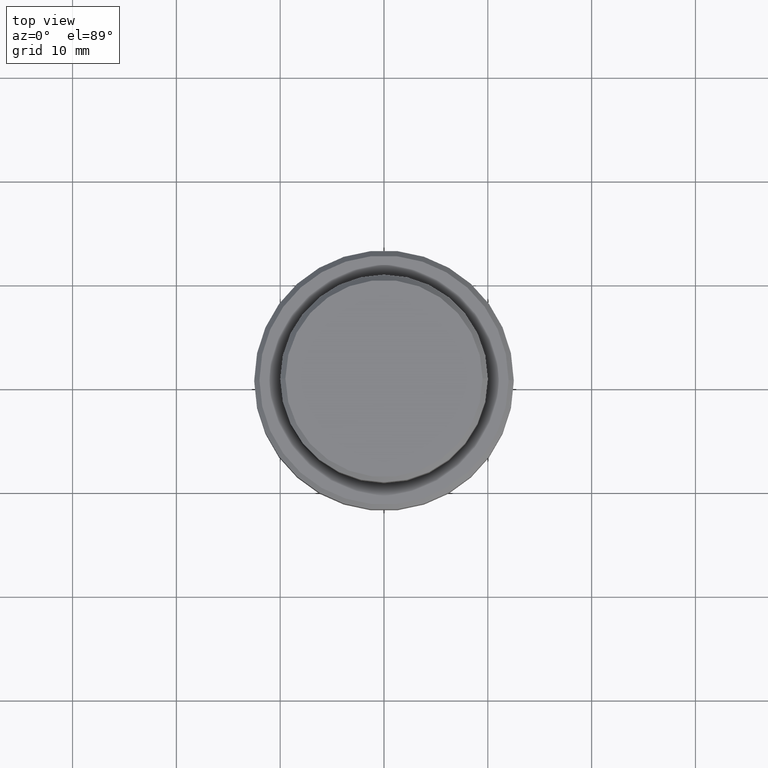
[diagram: clean part render]
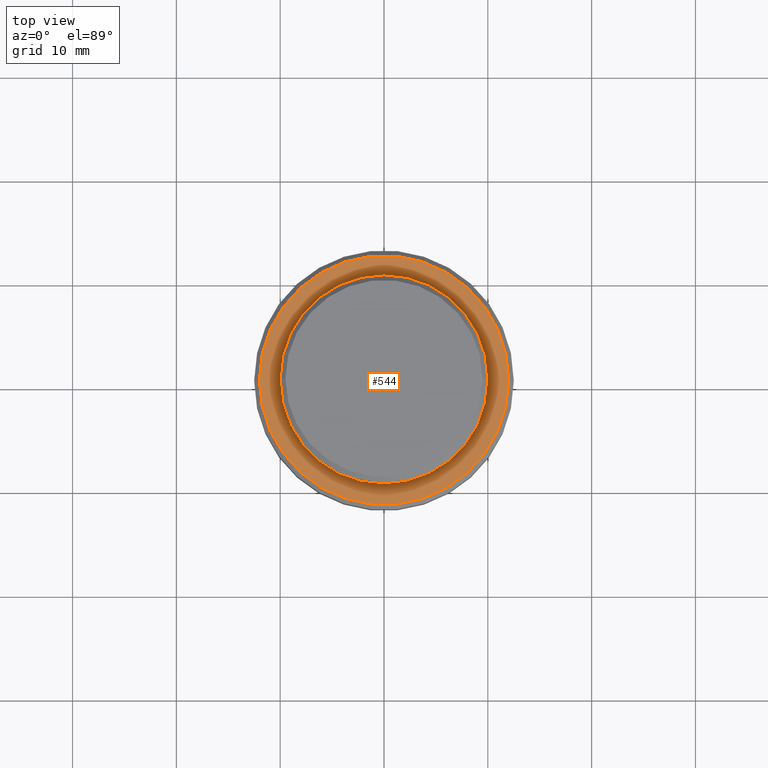
[diagram: same view with one face highlighted and labeled with its STEP entity id]
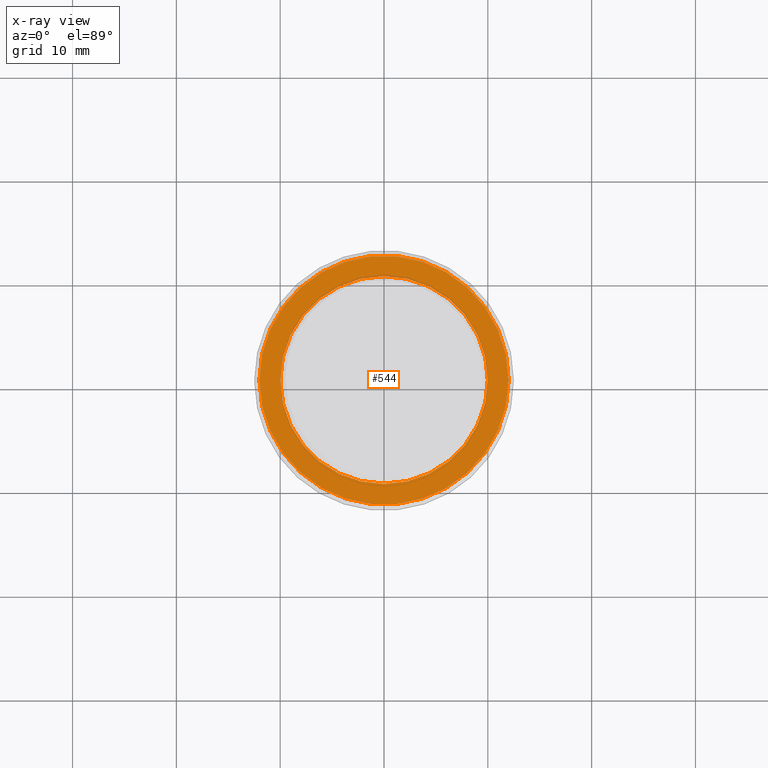
[diagram: x-ray of the same camera — body ghosted, the highlighted face saturated]
A machine part, top view. The second image highlights one B-rep face of the part: STEP entity #544.
The next image is the same camera in x-ray: the body ghosted, the highlighted face saturated — about 1% of this face is hidden behind the body in this view.
In plain terms, the highlighted planar face has unit normal (0, -0, 1).
Its self-contained STEP definition (entity closure, byte-faithful):
#2 = AXIS2_PLACEMENT_3D ( 'NONE', #939, #66, #828 ) ;
#20 = DIRECTION ( 'NONE',  ( -0.000000000000000000, -0.000000000000000000, 1.000000000000000000 ) ) ;
#66 = DIRECTION ( 'NONE',  ( -0.000000000000000000, -0.000000000000000000, 1.000000000000000000 ) ) ;
#197 = ORIENTED_EDGE ( 'NONE', *, *, #1183, .T. ) ;
#212 = VERTEX_POINT ( 'NONE', #1131 ) ;
#247 = CARTESIAN_POINT ( 'NONE',  ( 0.000000000000000000, 0.000000000000000000, -9.000000000000001776 ) ) ;
#259 = AXIS2_PLACEMENT_3D ( 'NONE', #550, #983, #1174 ) ;
#260 = CIRCLE ( 'NONE', #2, 11.99999999999999645 ) ;
#266 = EDGE_CURVE ( 'NONE', #776, #443, #617, .T. ) ;
#282 = CIRCLE ( 'NONE', #561, 9.999999999999994671 ) ;
#370 = DIRECTION ( 'NONE',  ( 1.000000000000000000, 0.000000000000000000, 0.000000000000000000 ) ) ;
#373 = CARTESIAN_POINT ( 'NONE',  ( 0.000000000000000000, 0.000000000000000000, -9.000000000000001776 ) ) ;
#381 = CIRCLE ( 'NONE', #676, 9.999999999999994671 ) ;
#428 = ORIENTED_EDGE ( 'NONE', *, *, #266, .T. ) ;
#443 = VERTEX_POINT ( 'NONE', #513 ) ;
#456 = AXIS2_PLACEMENT_3D ( 'NONE', #247, #20, #704 ) ;
#475 = EDGE_LOOP ( 'NONE', ( #1385, #428 ) ) ;
#508 = VERTEX_POINT ( 'NONE', #1189 ) ;
#513 = CARTESIAN_POINT ( 'NONE',  ( -11.99999999999999645, 0.000000000000000000, -9.000000000000001776 ) ) ;
#544 = ADVANCED_FACE ( 'NONE', ( #880, #1297 ), #767, .T. ) ;
#550 = CARTESIAN_POINT ( 'NONE',  ( 0.000000000000000000, 9.499999999999994671, -9.000000000000001776 ) ) ;
#561 = AXIS2_PLACEMENT_3D ( 'NONE', #683, #1109, #370 ) ;
#617 = CIRCLE ( 'NONE', #456, 11.99999999999999645 ) ;
#676 = AXIS2_PLACEMENT_3D ( 'NONE', #373, #805, #1234 ) ;
#683 = CARTESIAN_POINT ( 'NONE',  ( 0.000000000000000000, 0.000000000000000000, -9.000000000000001776 ) ) ;
#704 = DIRECTION ( 'NONE',  ( 1.000000000000000000, 0.000000000000000000, 0.000000000000000000 ) ) ;
#716 = CARTESIAN_POINT ( 'NONE',  ( 11.99999999999999645, 1.500192328955507537E-15, -9.000000000000001776 ) ) ;
#731 = EDGE_CURVE ( 'NONE', #212, #508, #282, .T. ) ;
#767 = PLANE ( 'NONE',  #259 ) ;
#776 = VERTEX_POINT ( 'NONE', #716 ) ;
#779 = EDGE_CURVE ( 'NONE', #443, #776, #260, .T. ) ;
#805 = DIRECTION ( 'NONE',  ( 0.000000000000000000, 0.000000000000000000, -1.000000000000000000 ) ) ;
#828 = DIRECTION ( 'NONE',  ( 1.000000000000000000, 0.000000000000000000, 0.000000000000000000 ) ) ;
#880 = FACE_OUTER_BOUND ( 'NONE', #475, .T. ) ;
#893 = EDGE_LOOP ( 'NONE', ( #197, #1249 ) ) ;
#939 = CARTESIAN_POINT ( 'NONE',  ( 0.000000000000000000, 0.000000000000000000, -9.000000000000001776 ) ) ;
#983 = DIRECTION ( 'NONE',  ( 0.000000000000000000, -0.000000000000000000, 1.000000000000000000 ) ) ;
#1109 = DIRECTION ( 'NONE',  ( 0.000000000000000000, 0.000000000000000000, -1.000000000000000000 ) ) ;
#1131 = CARTESIAN_POINT ( 'NONE',  ( -9.999999999999994671, 1.224646799147352665E-15, -9.000000000000001776 ) ) ;
#1174 = DIRECTION ( 'NONE',  ( 1.000000000000000000, 0.000000000000000000, 0.000000000000000000 ) ) ;
#1183 = EDGE_CURVE ( 'NONE', #508, #212, #381, .T. ) ;
#1189 = CARTESIAN_POINT ( 'NONE',  ( 9.999999999999994671, 0.000000000000000000, -9.000000000000001776 ) ) ;
#1234 = DIRECTION ( 'NONE',  ( 1.000000000000000000, 0.000000000000000000, 0.000000000000000000 ) ) ;
#1249 = ORIENTED_EDGE ( 'NONE', *, *, #731, .T. ) ;
#1297 = FACE_BOUND ( 'NONE', #893, .T. ) ;
#1385 = ORIENTED_EDGE ( 'NONE', *, *, #779, .T. ) ;